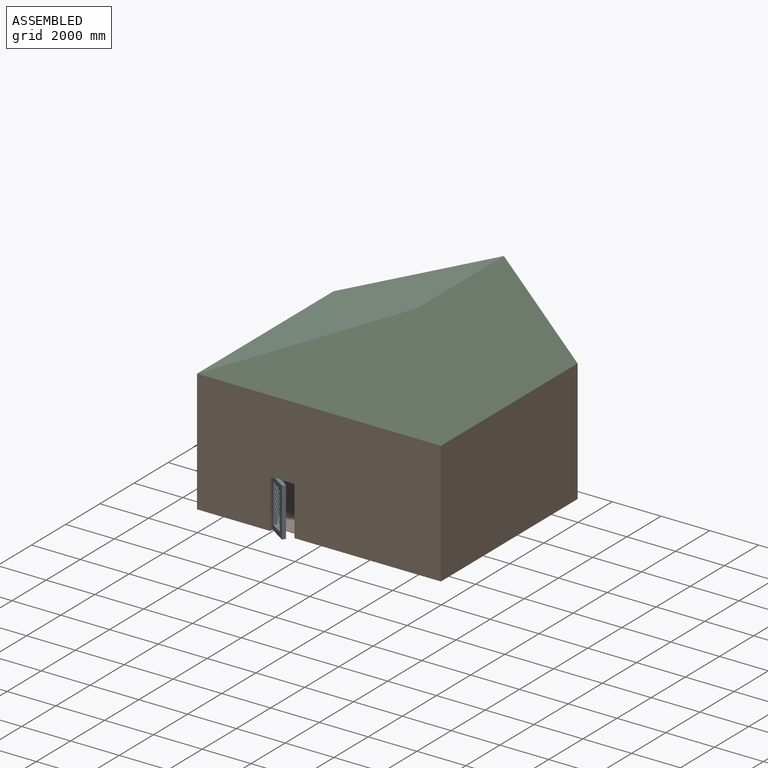
[diagram: assembled view]
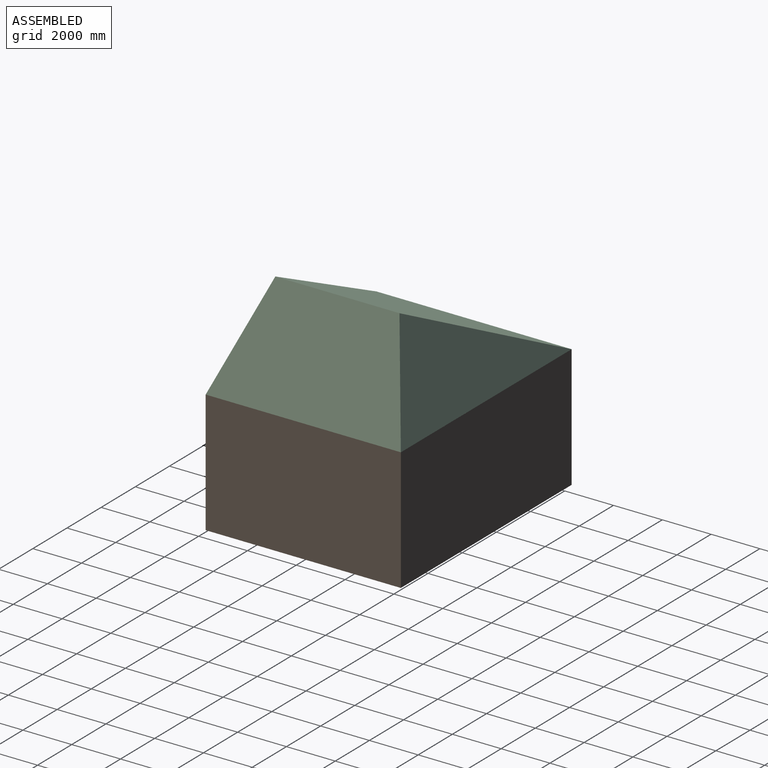
[diagram: assembled view, second angle]
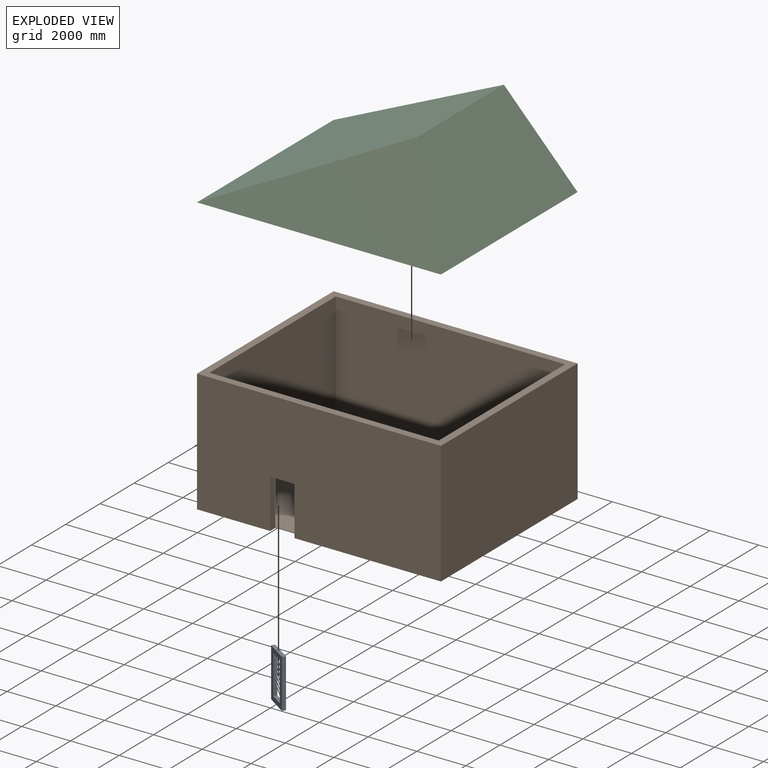
[diagram: exploded view]
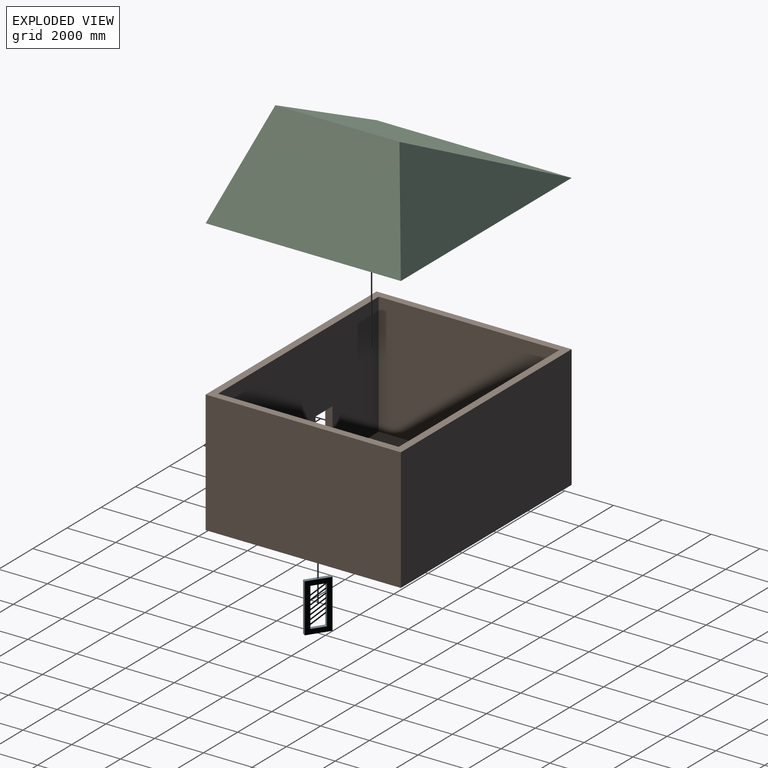
[diagram: exploded view, second angle]
ASSEMBLY  parts=3 mates=2
PART A: 38 faces, bbox 1000x150x2000 mm
  f0: plane 1600x150mm, normal (-1,0,0), area 231250mm2, adj f2,f7,f8,f9,f10,f11,f12,f13
  f1: plane 1600x150mm, normal (1,0,0), area 231250mm2, adj f2,f7,f8,f9,f10,f12,f13,f14
  f2: plane 600x150mm, normal (0,0,-1), area 90000mm2, adj f0,f1,f8,f9,f11
  f3: plane 1000x150mm, normal (0,0,1), area 150000mm2, adj f4,f6,f8,f9
  f4: plane 2000x150mm, normal (-1,0,0), area 300000mm2, adj f3,f5,f8,f9
  f5: plane 1000x150mm, normal (0,0,-1), area 150000mm2, adj f4,f6,f8,f9
  f6: plane 2000x150mm, normal (1,0,0), area 300000mm2, adj f3,f5,f8,f9
  f7: plane 600x150mm, normal (0,0,1), area 90000mm2, adj f0,f1,f8,f9
  f8: plane 2000x1000mm, normal (0,-1,0), area 1040000mm2, adj f0,f1,f2,f3,f4,f5,f6,f7
  f9: plane 2000x1000mm, normal (0,1,0), area 1040000mm2, adj f0,f1,f2,f3,f4,f5,f6,f7
  f10: plane 600x370mm, normal (-0.52,0,-0.85), area 17622.8mm2, adj f0,f1,f12,f13
  f11: plane 600x370mm, normal (0.52,0,0.85), area 17622.8mm2, adj f0,f2,f12,f13
  f12: plane 600x420mm, normal (0,-1,0), area 30000mm2, adj f0,f1,f10,f11
  f13: plane 600x420mm, normal (0,1,0), area 30000mm2, adj f0,f1,f10,f11
  f14: plane 600x370mm, normal (0.52,0,0.85), area 17622.8mm2, adj f0,f1,f16,f17
  f15: plane 600x370mm, normal (-0.52,0,-0.85), area 17622.8mm2, adj f0,f1,f16,f17
  f16: plane 600x420mm, normal (0,-1,0), area 30000mm2, adj f0,f1,f14,f15
  f17: plane 600x420mm, normal (0,1,0), area 30000mm2, adj f0,f1,f14,f15
  f18: plane 600x370mm, normal (0.52,0,0.85), area 17622.8mm2, adj f0,f1,f20,f21
  f19: plane 600x370mm, normal (-0.52,0,-0.85), area 17622.8mm2, adj f0,f1,f20,f21
  f20: plane 600x420mm, normal (0,-1,0), area 30000mm2, adj f0,f1,f18,f19
  f21: plane 600x420mm, normal (0,1,0), area 30000mm2, adj f0,f1,f18,f19
  f22: plane 600x370mm, normal (0.52,0,0.85), area 17622.8mm2, adj f0,f1,f24,f25
  f23: plane 600x370mm, normal (-0.52,0,-0.85), area 17622.8mm2, adj f0,f1,f24,f25
  f24: plane 600x420mm, normal (0,-1,0), area 30000mm2, adj f0,f1,f22,f23
  f25: plane 600x420mm, normal (0,1,0), area 30000mm2, adj f0,f1,f22,f23
  f26: plane 600x370mm, normal (0.52,0,0.85), area 17622.8mm2, adj f0,f1,f28,f29
  f27: plane 600x370mm, normal (-0.52,0,-0.85), area 17622.8mm2, adj f0,f1,f28,f29
  f28: plane 600x420mm, normal (0,-1,0), area 30000mm2, adj f0,f1,f26,f27
  f29: plane 600x420mm, normal (0,1,0), area 30000mm2, adj f0,f1,f26,f27
  f30: plane 600x370mm, normal (0.52,0,0.85), area 17622.8mm2, adj f0,f1,f32,f33
  f31: plane 600x370mm, normal (-0.52,0,-0.85), area 17622.8mm2, adj f0,f1,f32,f33
  f32: plane 600x420mm, normal (0,-1,0), area 30000mm2, adj f0,f1,f30,f31
  f33: plane 600x420mm, normal (0,1,0), area 30000mm2, adj f0,f1,f30,f31
  f34: plane 600x370mm, normal (0.52,0,0.85), area 17622.8mm2, adj f0,f1,f36,f37
  f35: plane 600x370mm, normal (-0.52,0,-0.85), area 17622.8mm2, adj f0,f1,f36,f37
  f36: plane 600x420mm, normal (0,-1,0), area 30000mm2, adj f0,f1,f34,f35
  f37: plane 600x420mm, normal (0,1,0), area 30000mm2, adj f0,f1,f34,f35
PART B: 15 faces, bbox 10000x8000x5025 mm
  f0: plane 8000x5025mm, normal (1,0,0), area 40200000mm2, adj f1,f3,f4,f9
  f1: plane 10000x5025mm, normal (0,1,0), area 50250000mm2, adj f0,f2,f4,f9
  f2: plane 8000x5025mm, normal (-1,0,0), area 40200000mm2, adj f1,f3,f4,f9
  f3: plane 10000x5025mm, normal (0,-1,0), area 48250000mm2, adj f0,f2,f4,f9,f12,f13,f14
  f4: plane 10000x8000mm, normal (0,0,-1), area 79700000mm2, adj f0,f1,f2,f3,f11,f12,f14
  f5: plane 9400x5000mm, normal (0,-1,0), area 47000000mm2, adj f6,f8,f9,f10
  f6: plane 7400x5000mm, normal (-1,0,0), area 37000000mm2, adj f5,f7,f9,f10
  f7: plane 9400x5000mm, normal (0,1,0), area 45025000mm2, adj f6,f8,f9,f10,f12,f13,f14
  f8: plane 7400x5000mm, normal (1,0,0), area 37000000mm2, adj f5,f7,f9,f10
  f9: plane 10000x8000mm, normal (0,0,1), area 10440000mm2, adj f0,f1,f2,f3,f5,f6,f7,f8
  f10: plane 9400x7400mm, normal (0,0,1), area 69560000mm2, adj f5,f6,f7,f8,f11
  f11: plane 1000x25mm, normal (0,-1,0), area 25000mm2, adj f4,f10,f12,f14
  f12: plane 2000x300mm, normal (-1,0,0), area 600000mm2, adj f3,f4,f7,f11,f13
  f13: plane 1000x300mm, normal (0,0,-1), area 300000mm2, adj f3,f7,f12,f14
  f14: plane 2000x300mm, normal (1,0,0), area 600000mm2, adj f3,f4,f7,f11,f13
PART C: 5 faces, bbox 10000x8000x4000 mm
  f0: plane 8000x4000mm, normal (0.89,0,0.45), area 29266190.1mm2, adj f1,f2,f3,f4
  f1: plane 8000x8000mm, normal (-0.45,0,0.89), area 58532380.3mm2, adj f0,f2,f3,f4
  f2: plane 10000x8000mm, normal (0,0,-1), area 80000000mm2, adj f0,f1,f3,f4
  f3: plane 10000x4000mm, normal (0,-0.94,0.34), area 21283555.4mm2, adj f0,f1,f2
  f4: plane 10000x4000mm, normal (0,0.94,0.34), area 21283555.4mm2, adj f0,f1,f2
PLACE A rot(axis=(0,0,-1),33.8deg) t=(-2047.4,-3776.79,25)mm
PLACE B t=(-5.65,-14.49,0)mm
PLACE C t=(-5.65,3985.51,5025)mm
MATE revolute A.f5 <-> B.f10  axis (0,0,1) through (-2005.65,-3714.49,25)mm
MATE fastened C.f2 <-> B.f9  axis (0,0,-1) through (-5005.65,-4014.49,5025)mm
